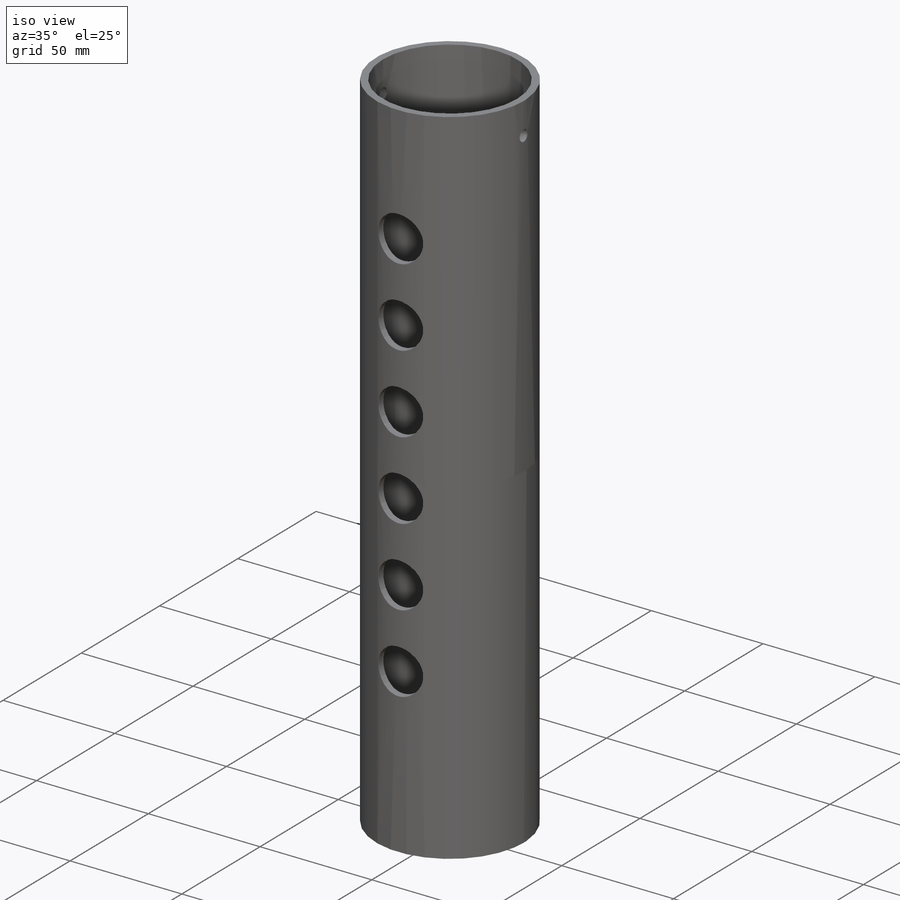
[diagram: iso view]
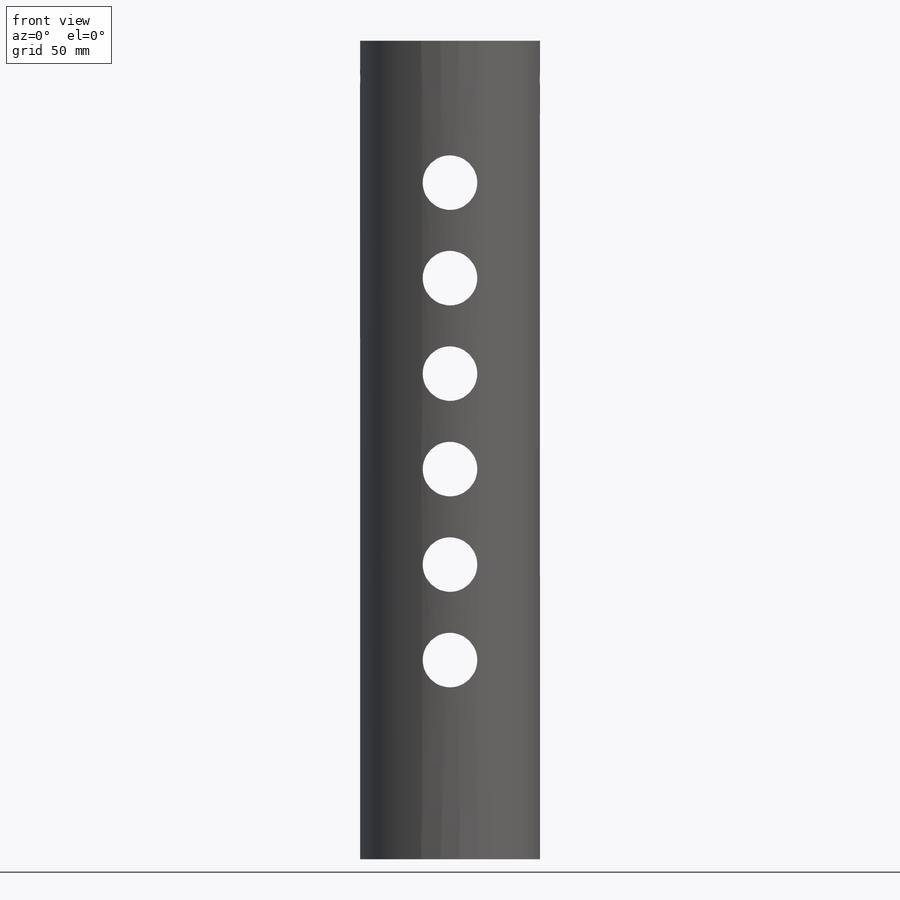
[diagram: front view]
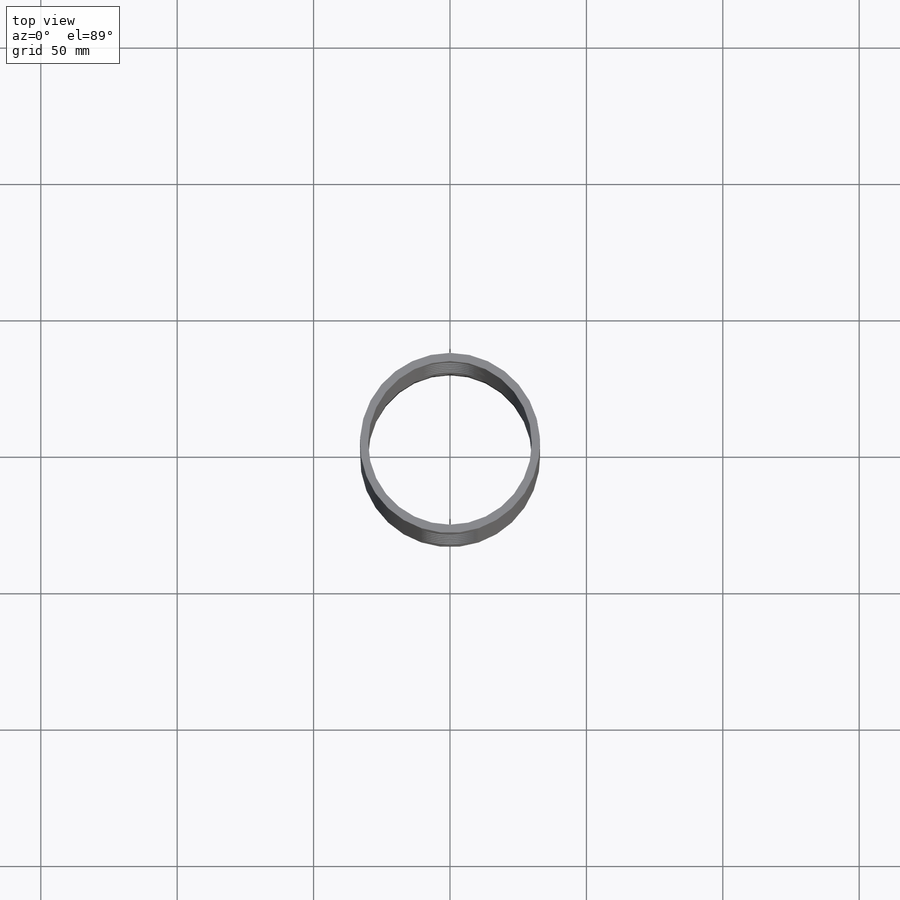
[diagram: top view]
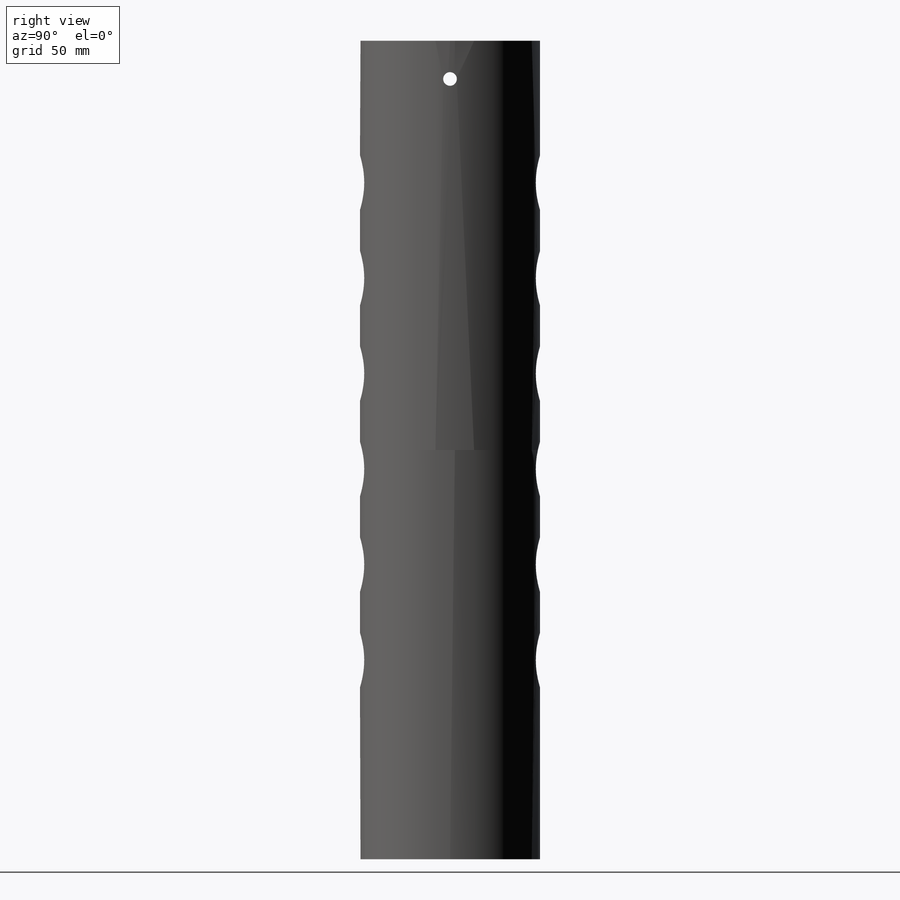
[diagram: right view]
SOLIDWORKS PART (.sldprt)
format: sldprt  version: not decoded by parser v0  size: 235,008 bytes
history: native  units: mm
features: plane x3, sketch x3, cut_extrude x2, thread x2, material x1, pattern_linear x1 (+10 scaffold rows collapsed)
feature tree (22):
  scaffold x10  (default folders/planes/origin — collapsed)
  material  "Material <not specified>"
  plane  "Alzado"
  plane  "Planta"
  plane  "Vista lateral"
  sketch  "Sketch1"  dims[c1.D1=60.0mm c2.D1=300.0mm c2.D5=3.0mm c2.D6=10.0mm c2.D7=5.0mm]
  sketch  "Sketch2"  dims[c1.D1=~28.148052mm c2.D1=20.0mm c2.D2=52.0mm]
  cut_extrude  "Cut-Extrude1"  [1 undecoded]
  pattern_linear  "LPattern1"  Count1=6 Count2=1 Spacing1=35mm Spacing2=10mm
  sketch  "Sketch3"  dims[D1=5.0mm D2=14.0mm]
  cut_extrude  "Cut-Extrude2"  [1 undecoded]
  thread  "Cosmetic Thread1"  Diameter=6mm  [1 undecoded]
  thread  "Cosmetic Thread2"  Diameter=6mm  [1 undecoded]
decode coverage: 6 of 8 modeling features carry decoded parameters
note: ~ marks probable driven/reference dimensions
note: 4 parameter values undecoded
note: suppression state not decoded; provenance and decode notes live in map.json
